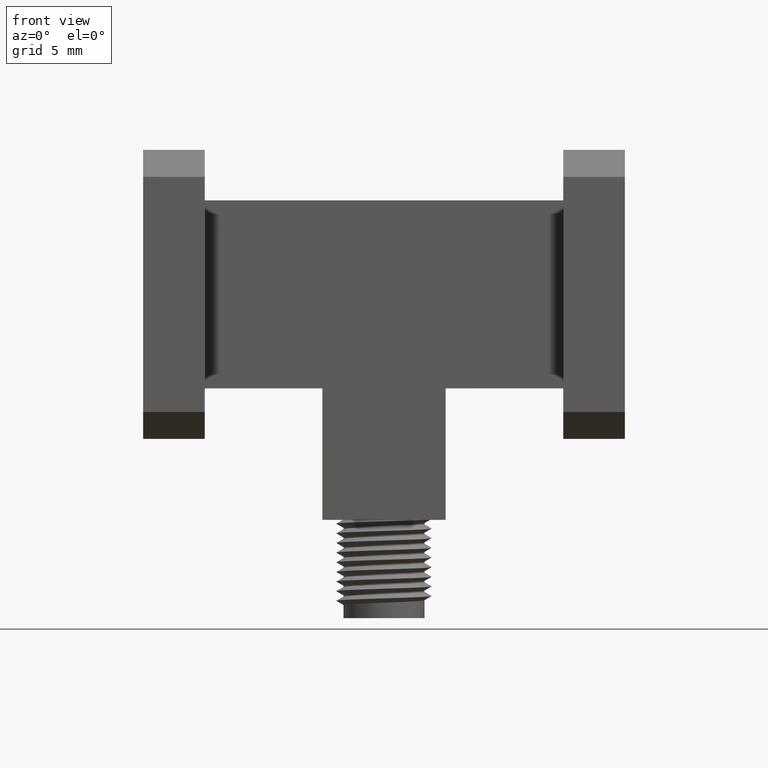
[diagram: clean part render]
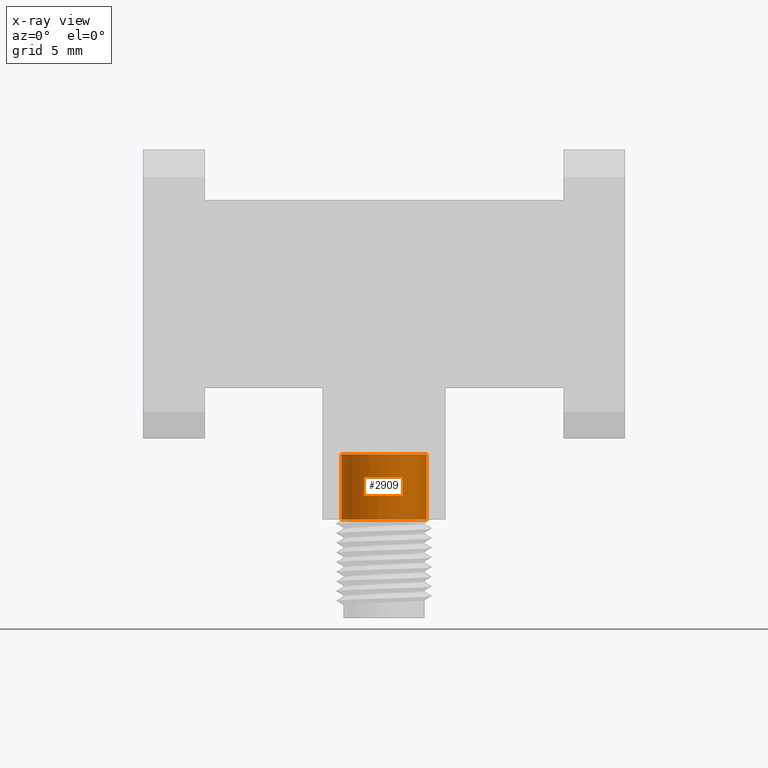
[diagram: x-ray — body ghosted, one internal face saturated and labeled with its STEP entity id]
A machine part, front view, then the same camera in x-ray: the body is ghosted and one INTERNAL B-rep face — a face not visible from any outside direction — is saturated and labeled: STEP entity #2909.
In plain terms, the highlighted cylindrical surface (partial cylindrical patch) has radius 2.8067 mm, axis along (-0, -0, -1).
Its self-contained STEP definition (entity closure, byte-faithful):
#9 = VECTOR ( 'NONE', #6883, 39.37007874015748100 ) ;
#588 = ORIENTED_EDGE ( 'NONE', *, *, #2617, .T. ) ;
#628 = CARTESIAN_POINT ( 'NONE',  ( -0.1248643473207044500, 0.2133681026864122100, -0.2935334925322735100 ) ) ;
#1075 = VECTOR ( 'NONE', #1616, 39.37007874015748100 ) ;
#1236 = CYLINDRICAL_SURFACE ( 'NONE', #11100, 0.1105000000000000000 ) ;
#1616 = DIRECTION ( 'NONE',  ( -0.0000000000000000000, -0.0000000000000000000, -1.000000000000000000 ) ) ;
#1897 = EDGE_CURVE ( 'NONE', #8398, #11989, #7434, .T. ) ;
#2149 = ORIENTED_EDGE ( 'NONE', *, *, #7768, .F. ) ;
#2617 = EDGE_CURVE ( 'NONE', #11989, #7775, #6989, .T. ) ;
#2718 = EDGE_CURVE ( 'NONE', #10574, #7775, #4063, .T. ) ;
#2909 = ADVANCED_FACE ( 'NONE', ( #3185 ), #1236, .F. ) ;
#3091 = CARTESIAN_POINT ( 'NONE',  ( 0.09613565267929556600, 0.2133681026864122100, -0.2935334925322735100 ) ) ;
#3185 = FACE_OUTER_BOUND ( 'NONE', #3338, .T. ) ;
#3338 = EDGE_LOOP ( 'NONE', ( #2149, #6286, #588, #7027 ) ) ;
#3592 = AXIS2_PLACEMENT_3D ( 'NONE', #6918, #10007, #11181 ) ;
#4063 = LINE ( 'NONE', #628, #1075 ) ;
#5343 = DIRECTION ( 'NONE',  ( 0.0000000000000000000, 0.0000000000000000000, -1.000000000000000000 ) ) ;
#6042 = CARTESIAN_POINT ( 'NONE',  ( 0.09613565267929556600, 0.2133681026864122100, -0.4635334925322734900 ) ) ;
#6286 = ORIENTED_EDGE ( 'NONE', *, *, #1897, .T. ) ;
#6305 = CARTESIAN_POINT ( 'NONE',  ( -0.01436434732070443600, 0.2133681026864122100, -0.4635334925322734900 ) ) ;
#6883 = DIRECTION ( 'NONE',  ( -0.0000000000000000000, -0.0000000000000000000, -1.000000000000000000 ) ) ;
#6918 = CARTESIAN_POINT ( 'NONE',  ( -0.01436434732070443600, 0.2133681026864122100, -0.2935334925322735100 ) ) ;
#6989 = CIRCLE ( 'NONE', #7107, 0.1105000000000000000 ) ;
#7027 = ORIENTED_EDGE ( 'NONE', *, *, #2718, .F. ) ;
#7107 = AXIS2_PLACEMENT_3D ( 'NONE', #6305, #5343, #11134 ) ;
#7434 = LINE ( 'NONE', #3091, #9 ) ;
#7533 = CARTESIAN_POINT ( 'NONE',  ( -0.1248643473207044500, 0.2133681026864122100, -0.4635334925322734900 ) ) ;
#7622 = CARTESIAN_POINT ( 'NONE',  ( 0.09613565267929556600, 0.2133681026864122100, -0.2935334925322735100 ) ) ;
#7768 = EDGE_CURVE ( 'NONE', #8398, #10574, #10407, .T. ) ;
#7775 = VERTEX_POINT ( 'NONE', #7533 ) ;
#8398 = VERTEX_POINT ( 'NONE', #7622 ) ;
#8845 = DIRECTION ( 'NONE',  ( -1.000000000000000000, 0.0000000000000000000, 0.0000000000000000000 ) ) ;
#8883 = DIRECTION ( 'NONE',  ( -0.0000000000000000000, -0.0000000000000000000, -1.000000000000000000 ) ) ;
#9113 = CARTESIAN_POINT ( 'NONE',  ( -0.1248643473207044500, 0.2133681026864122100, -0.2935334925322735100 ) ) ;
#9745 = CARTESIAN_POINT ( 'NONE',  ( -0.01436434732070443600, 0.2133681026864122100, -0.2935334925322735100 ) ) ;
#10007 = DIRECTION ( 'NONE',  ( 0.0000000000000000000, 0.0000000000000000000, -1.000000000000000000 ) ) ;
#10407 = CIRCLE ( 'NONE', #3592, 0.1105000000000000000 ) ;
#10574 = VERTEX_POINT ( 'NONE', #9113 ) ;
#11100 = AXIS2_PLACEMENT_3D ( 'NONE', #9745, #8883, #8845 ) ;
#11134 = DIRECTION ( 'NONE',  ( -1.000000000000000000, 0.0000000000000000000, 0.0000000000000000000 ) ) ;
#11181 = DIRECTION ( 'NONE',  ( -1.000000000000000000, 0.0000000000000000000, 0.0000000000000000000 ) ) ;
#11989 = VERTEX_POINT ( 'NONE', #6042 ) ;